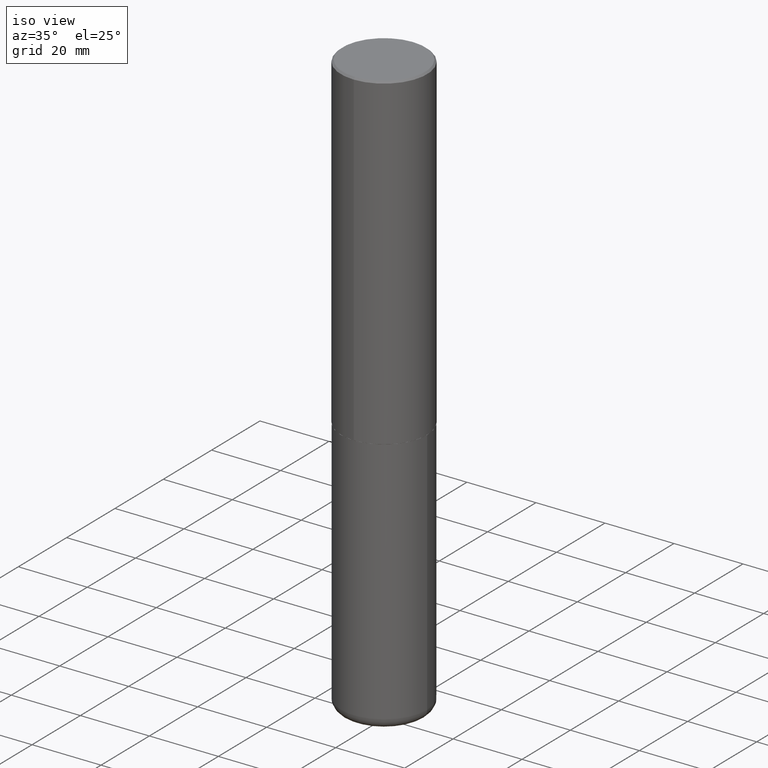
[diagram: clean part render]
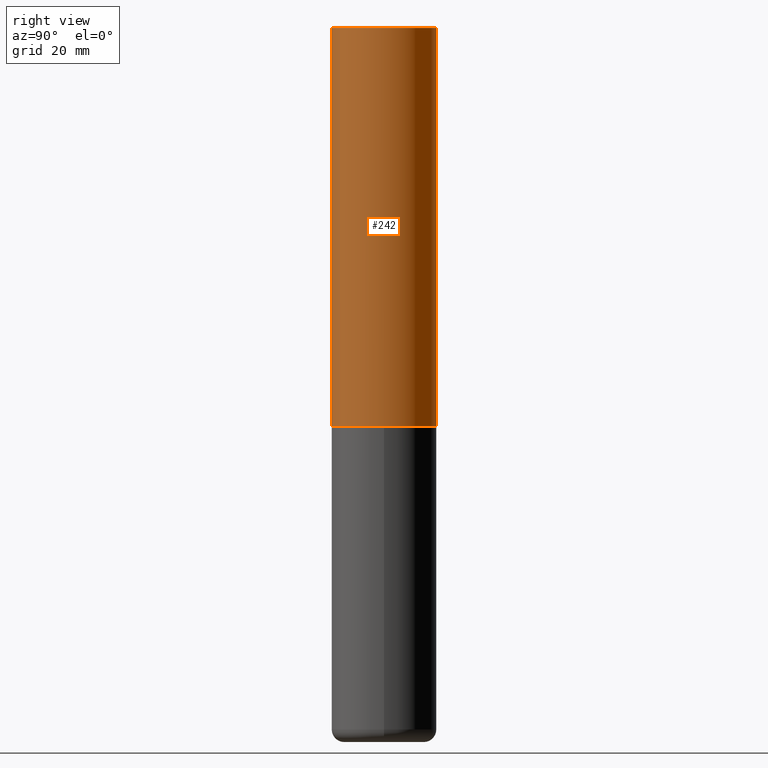
[diagram: tour spotlight — one face highlighted and labeled with its STEP entity id]
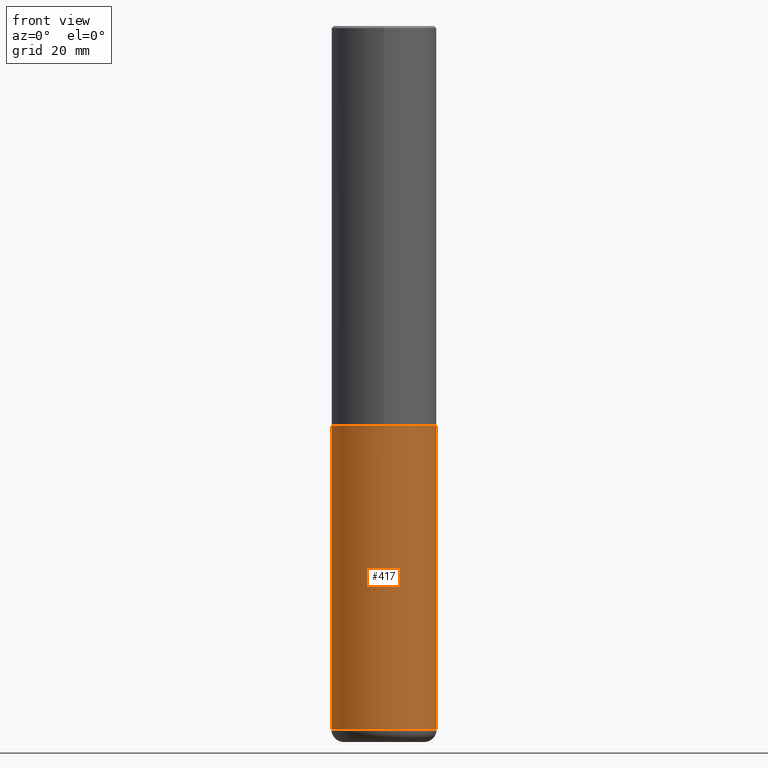
[diagram: tour spotlight — one face highlighted and labeled with its STEP entity id]
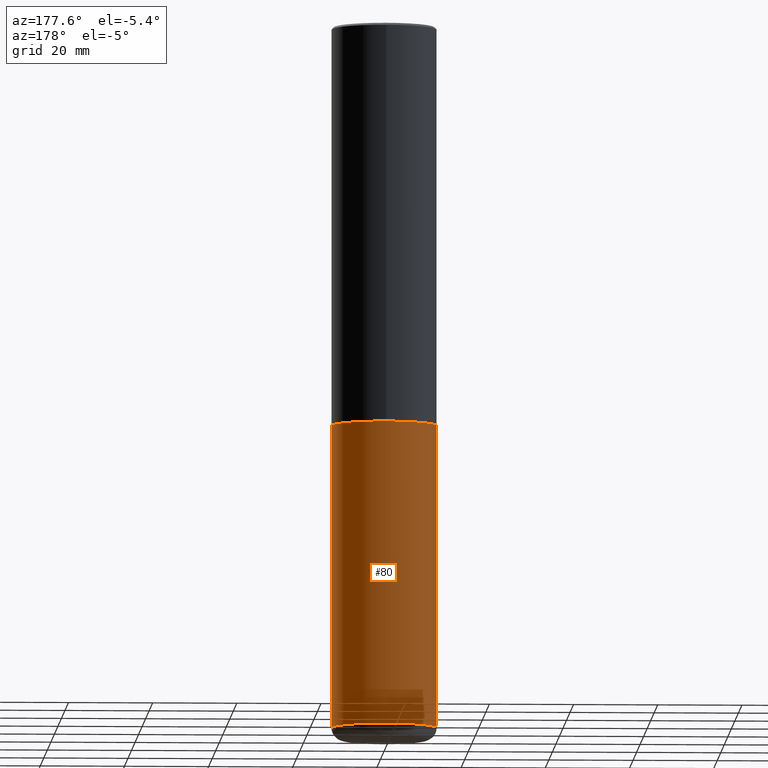
[diagram: tour spotlight — one face highlighted and labeled with its STEP entity id]
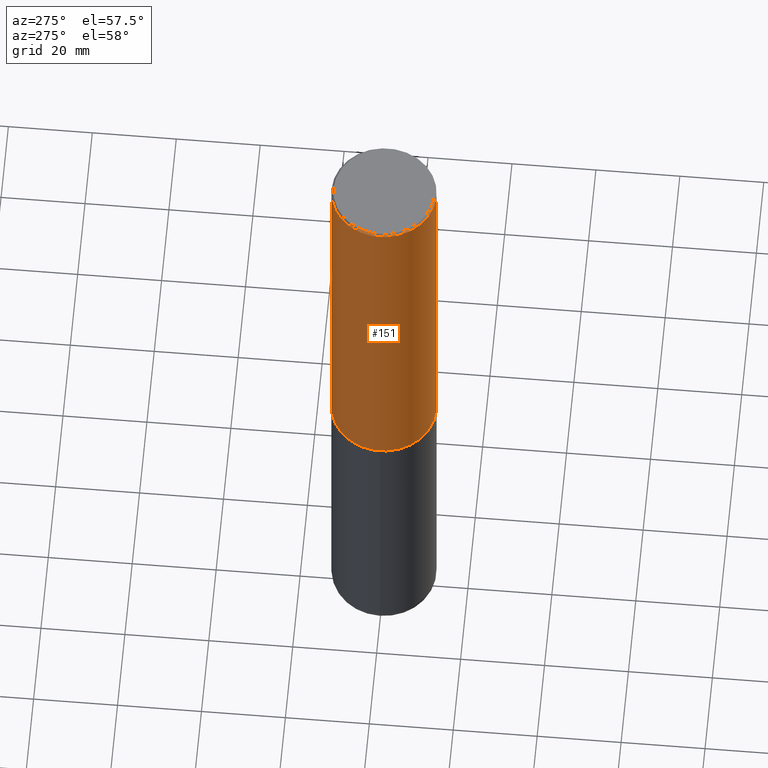
[diagram: tour spotlight — one face highlighted and labeled with its STEP entity id]
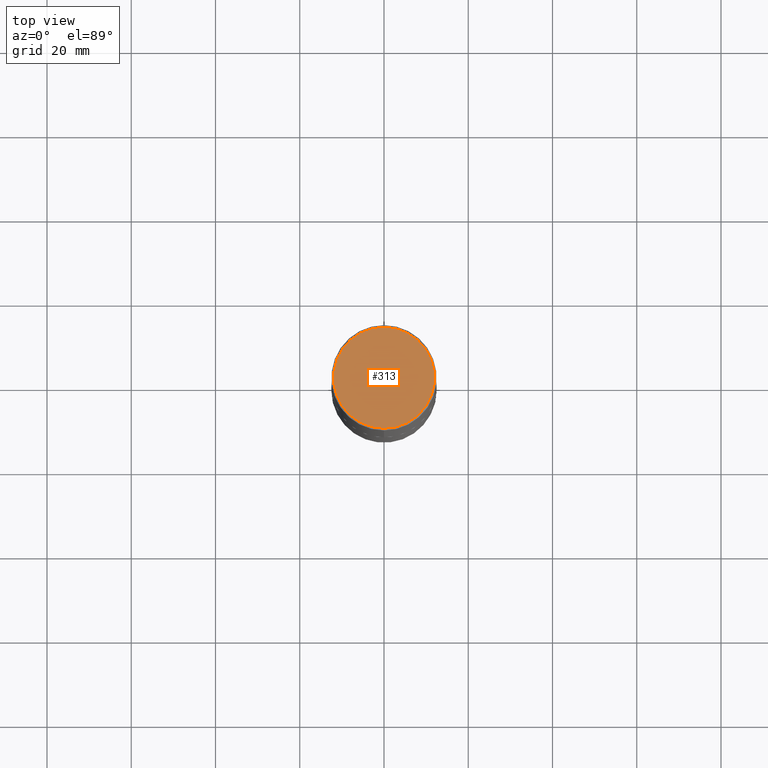
[diagram: tour spotlight — one face highlighted and labeled with its STEP entity id]
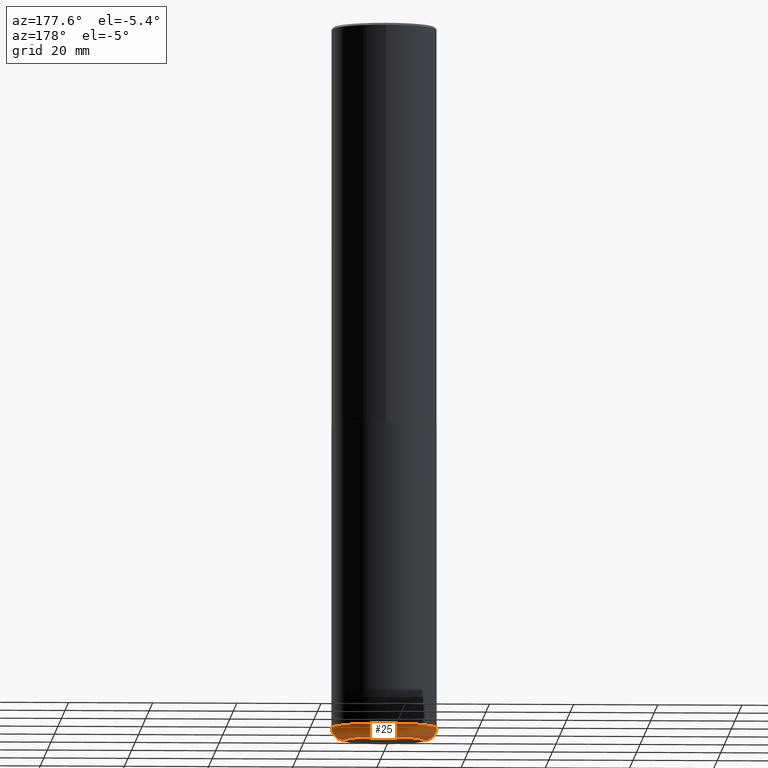
[diagram: tour spotlight — one face highlighted and labeled with its STEP entity id]
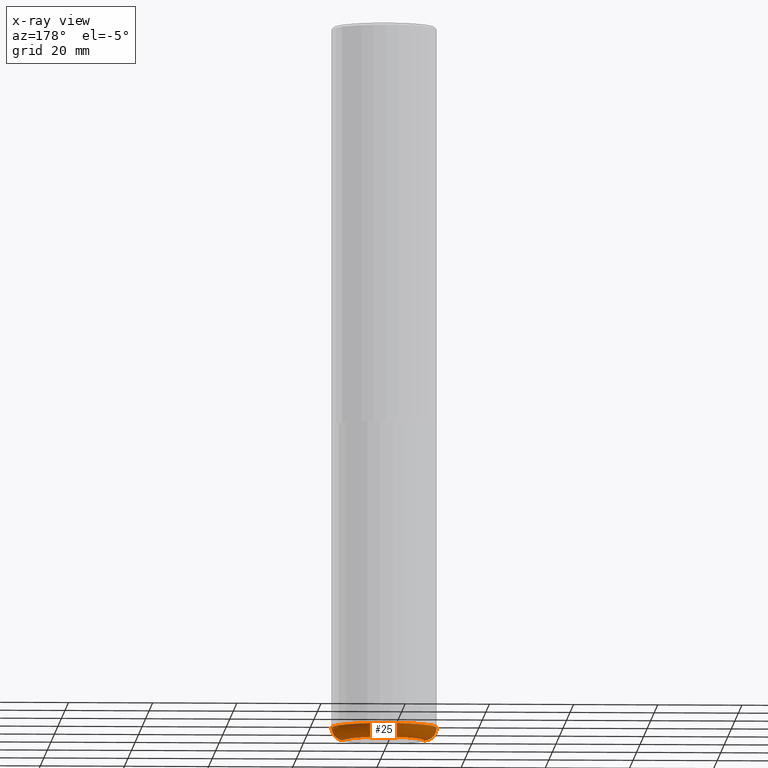
[diagram: x-ray of the same camera — body ghosted, this tour face saturated]
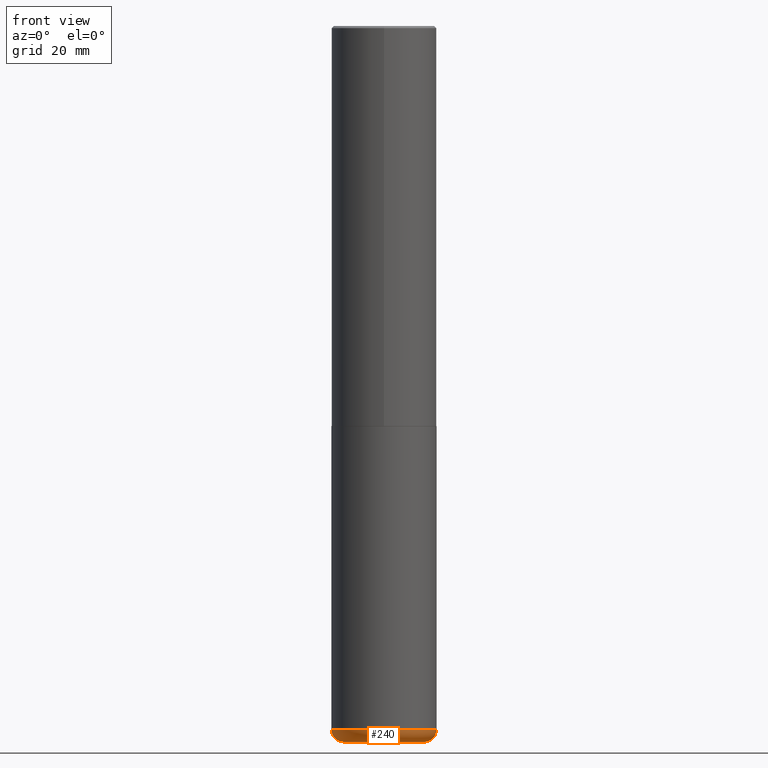
[diagram: tour spotlight — one face highlighted and labeled with its STEP entity id]
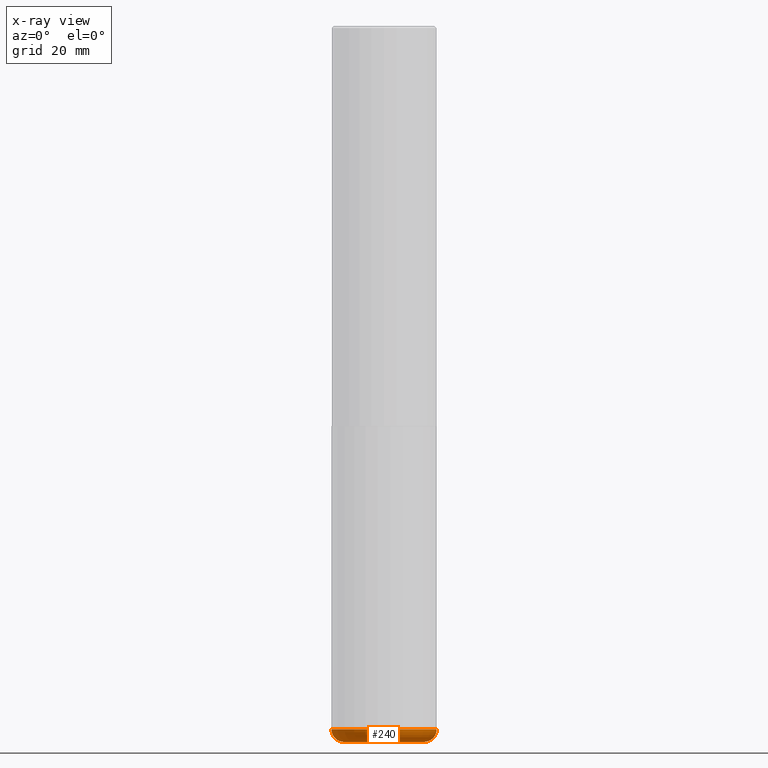
[diagram: x-ray of the same camera — body ghosted, this tour face saturated]
A machine part: a face-by-face anatomy tour. The part has 14 B-rep faces; the first image is the clean iso view, then the 7 largest visible faces are spotlighted one at a time (largest first), each with its STEP entity span.

Face 1 — right view, entity #242. In plain terms, the highlighted cylindrical surface (partial cylindrical patch) has radius 12.5006 mm, axis along (-0, 0, 1).
Definition (entity closure, byte-faithful):
#3 = VECTOR ( 'NONE', #330, 39.37007874015748143 ) ;
#9 = LINE ( 'NONE', #110, #3 ) ;
#14 = EDGE_CURVE ( 'NONE', #258, #360, #259, .T. ) ;
#20 = CARTESIAN_POINT ( 'NONE',  ( 0.000000000000000000, 0.000000000000000000, 0.000000000000000000 ) ) ;
#37 = LINE ( 'NONE', #73, #228 ) ;
#41 = DIRECTION ( 'NONE',  ( -2.445976594451651672E-29, 3.490754157143982552E-15, 1.000000000000000000 ) ) ;
#46 = CARTESIAN_POINT ( 'NONE',  ( 9.145751084314172604E-29, -1.305227886897706845E-14, -3.739100000000000534 ) ) ;
#72 = ORIENTED_EDGE ( 'NONE', *, *, #140, .T. ) ;
#73 = CARTESIAN_POINT ( 'NONE',  ( -3.436665081823296565E-15, -0.4921500000000000874, 1.717974658438411319E-15 ) ) ;
#77 = DIRECTION ( 'NONE',  ( -2.445976594451651952E-29, 3.490754157143982552E-15, 1.000000000000000000 ) ) ;
#94 = AXIS2_PLACEMENT_3D ( 'NONE', #46, #303, #143 ) ;
#110 = CARTESIAN_POINT ( 'NONE',  ( 3.496936074043333291E-15, 0.4921500000000000874, -1.717974658438411319E-15 ) ) ;
#115 = AXIS2_PLACEMENT_3D ( 'NONE', #211, #77, #181 ) ;
#119 = EDGE_CURVE ( 'NONE', #175, #360, #9, .T. ) ;
#123 = CARTESIAN_POINT ( 'NONE',  ( -3.376394089603257868E-15, -0.4921499999999999764, -0.01999999999999839059 ) ) ;
#126 = DIRECTION ( 'NONE',  ( -6.982962677686265922E-15, -1.000000000000000000, 3.490754157143982552E-15 ) ) ;
#127 = AXIS2_PLACEMENT_3D ( 'NONE', #20, #378, #126 ) ;
#128 = CARTESIAN_POINT ( 'NONE',  ( 3.436665081823295777E-15, 0.4921499999999998098, -0.02000000000000182188 ) ) ;
#140 = EDGE_CURVE ( 'NONE', #163, #175, #307, .T. ) ;
#143 = DIRECTION ( 'NONE',  ( -6.982962677686265922E-15, -1.000000000000000000, 3.330506545156063496E-15 ) ) ;
#152 = FACE_OUTER_BOUND ( 'NONE', #305, .T. ) ;
#163 = VERTEX_POINT ( 'NONE', #281 ) ;
#171 = ORIENTED_EDGE ( 'NONE', *, *, #14, .F. ) ;
#175 = VERTEX_POINT ( 'NONE', #254 ) ;
#181 = DIRECTION ( 'NONE',  ( -6.982962677686265922E-15, -1.000000000000000000, 3.486624039460257331E-15 ) ) ;
#211 = CARTESIAN_POINT ( 'NONE',  ( 4.891953188903329688E-31, -6.981508314288001687E-17, -0.02000000000000010797 ) ) ;
#218 = CYLINDRICAL_SURFACE ( 'NONE', #127, 0.4921500000000000874 ) ;
#228 = VECTOR ( 'NONE', #41, 39.37007874015748143 ) ;
#242 = ADVANCED_FACE ( 'NONE', ( #152 ), #218, .T. ) ;
#254 = CARTESIAN_POINT ( 'NONE',  ( 3.496936074043380229E-15, 0.4921499999999873198, -3.739100000000002311 ) ) ;
#258 = VERTEX_POINT ( 'NONE', #123 ) ;
#259 = CIRCLE ( 'NONE', #115, 0.4921499999999999209 ) ;
#264 = ORIENTED_EDGE ( 'NONE', *, *, #119, .T. ) ;
#281 = CARTESIAN_POINT ( 'NONE',  ( -3.436665081823207030E-15, -0.4921500000000134101, -3.739099999999998758 ) ) ;
#303 = DIRECTION ( 'NONE',  ( -2.445976594451651952E-29, 3.490754157143982552E-15, 1.000000000000000000 ) ) ;
#305 = EDGE_LOOP ( 'NONE', ( #72, #264, #171, #336 ) ) ;
#307 = CIRCLE ( 'NONE', #94, 0.4921500000000003650 ) ;
#330 = DIRECTION ( 'NONE',  ( -2.445976594451651672E-29, 3.490754157143982552E-15, 1.000000000000000000 ) ) ;
#336 = ORIENTED_EDGE ( 'NONE', *, *, #406, .F. ) ;
#360 = VERTEX_POINT ( 'NONE', #128 ) ;
#378 = DIRECTION ( 'NONE',  ( -2.445976594451651952E-29, 3.490754157143982552E-15, 1.000000000000000000 ) ) ;
#406 = EDGE_CURVE ( 'NONE', #163, #258, #37, .T. ) ;

Face 2 — front view, entity #417. In plain terms, the highlighted cylindrical surface (partial cylindrical patch) has radius 12.5006 mm, axis along (-0, 0, 1).
Definition (entity closure, byte-faithful):
#6 = VERTEX_POINT ( 'NONE', #179 ) ;
#24 = LINE ( 'NONE', #28, #122 ) ;
#26 = CARTESIAN_POINT ( 'NONE',  ( 0.4921499999999999764, -3.436665081823295777E-15, 2.399810400207969603E-29 ) ) ;
#28 = CARTESIAN_POINT ( 'NONE',  ( -0.4921499999999999764, 3.496936074043332897E-15, -2.420853904668951509E-29 ) ) ;
#57 = DIRECTION ( 'NONE',  ( 1.000000000000000000, -6.982962677686265133E-15, 0.000000000000000000 ) ) ;
#68 = AXIS2_PLACEMENT_3D ( 'NONE', #282, #91, #57 ) ;
#91 = DIRECTION ( 'NONE',  ( -2.445468806185136597E-29, 3.491481338843145583E-15, 1.000000000000000000 ) ) ;
#97 = CARTESIAN_POINT ( 'NONE',  ( 0.000000000000000000, 0.000000000000000000, 0.000000000000000000 ) ) ;
#98 = CARTESIAN_POINT ( 'NONE',  ( 9.146297882013029477E-29, -1.305848935540725085E-14, -3.740100000000000424 ) ) ;
#100 = AXIS2_PLACEMENT_3D ( 'NONE', #98, #324, #136 ) ;
#121 = LINE ( 'NONE', #26, #191 ) ;
#122 = VECTOR ( 'NONE', #154, 39.37007874015748143 ) ;
#125 = CARTESIAN_POINT ( 'NONE',  ( 0.4921499999999999764, -1.649515443723054663E-14, -3.740100000000000424 ) ) ;
#136 = DIRECTION ( 'NONE',  ( 1.000000000000000000, -6.982962677686265922E-15, 0.000000000000000000 ) ) ;
#137 = ORIENTED_EDGE ( 'NONE', *, *, #157, .T. ) ;
#154 = DIRECTION ( 'NONE',  ( -2.445468806185136877E-29, 3.491481338843145188E-15, 1.000000000000000000 ) ) ;
#157 = EDGE_CURVE ( 'NONE', #351, #173, #121, .T. ) ;
#161 = ORIENTED_EDGE ( 'NONE', *, *, #286, .F. ) ;
#166 = FACE_OUTER_BOUND ( 'NONE', #169, .T. ) ;
#169 = EDGE_LOOP ( 'NONE', ( #161, #241, #137, #418 ) ) ;
#173 = VERTEX_POINT ( 'NONE', #125 ) ;
#179 = CARTESIAN_POINT ( 'NONE',  ( -0.4921499999999999764, -1.451020435697325173E-14, -3.740100000000000424 ) ) ;
#191 = VECTOR ( 'NONE', #217, 39.37007874015748143 ) ;
#200 = CYLINDRICAL_SURFACE ( 'NONE', #208, 0.4921499999999999764 ) ;
#208 = AXIS2_PLACEMENT_3D ( 'NONE', #97, #328, #414 ) ;
#209 = EDGE_CURVE ( 'NONE', #233, #351, #250, .T. ) ;
#217 = DIRECTION ( 'NONE',  ( -2.445468806185136877E-29, 3.491481338843145188E-15, 1.000000000000000000 ) ) ;
#233 = VERTEX_POINT ( 'NONE', #248 ) ;
#241 = ORIENTED_EDGE ( 'NONE', *, *, #209, .T. ) ;
#248 = CARTESIAN_POINT ( 'NONE',  ( -0.4921499999999999764, -1.945885543258258157E-14, -6.574799999999999756 ) ) ;
#250 = CIRCLE ( 'NONE', #68, 0.4921500000000000319 ) ;
#282 = CARTESIAN_POINT ( 'NONE',  ( 1.607846830690603466E-28, -2.295579150662591525E-14, -6.574799999999999756 ) ) ;
#286 = EDGE_CURVE ( 'NONE', #233, #6, #24, .T. ) ;
#287 = CARTESIAN_POINT ( 'NONE',  ( 0.4921499999999999764, -2.639245658844920945E-14, -6.574799999999999756 ) ) ;
#324 = DIRECTION ( 'NONE',  ( -2.445468806185136597E-29, 3.491481338843145583E-15, 1.000000000000000000 ) ) ;
#328 = DIRECTION ( 'NONE',  ( -2.445468806185136597E-29, 3.491481338843145583E-15, 1.000000000000000000 ) ) ;
#351 = VERTEX_POINT ( 'NONE', #287 ) ;
#371 = CIRCLE ( 'NONE', #100, 0.4921499999999999764 ) ;
#383 = EDGE_CURVE ( 'NONE', #6, #173, #371, .T. ) ;
#414 = DIRECTION ( 'NONE',  ( 1.000000000000000000, -6.982962677686265922E-15, 4.876176775795935793E-29 ) ) ;
#417 = ADVANCED_FACE ( 'NONE', ( #166 ), #200, .T. ) ;
#418 = ORIENTED_EDGE ( 'NONE', *, *, #383, .F. ) ;

Face 3 — auxiliary view, entity #80. In plain terms, the highlighted cylindrical surface (partial cylindrical patch) has radius 12.5006 mm, axis along (-0, 0, 1).
Definition (entity closure, byte-faithful):
#6 = VERTEX_POINT ( 'NONE', #179 ) ;
#24 = LINE ( 'NONE', #28, #122 ) ;
#26 = CARTESIAN_POINT ( 'NONE',  ( 0.4921499999999999764, -3.436665081823295777E-15, 2.399810400207969603E-29 ) ) ;
#28 = CARTESIAN_POINT ( 'NONE',  ( -0.4921499999999999764, 3.496936074043332897E-15, -2.420853904668951509E-29 ) ) ;
#80 = ADVANCED_FACE ( 'NONE', ( #245 ), #177, .T. ) ;
#93 = CARTESIAN_POINT ( 'NONE',  ( 9.146297882013029477E-29, -1.305848935540725085E-14, -3.740100000000000424 ) ) ;
#121 = LINE ( 'NONE', #26, #191 ) ;
#122 = VECTOR ( 'NONE', #154, 39.37007874015748143 ) ;
#125 = CARTESIAN_POINT ( 'NONE',  ( 0.4921499999999999764, -1.649515443723054663E-14, -3.740100000000000424 ) ) ;
#132 = DIRECTION ( 'NONE',  ( 1.000000000000000000, -6.982962677686265133E-15, 0.000000000000000000 ) ) ;
#142 = DIRECTION ( 'NONE',  ( -2.445468806185136597E-29, 3.491481338843145583E-15, 1.000000000000000000 ) ) ;
#148 = ORIENTED_EDGE ( 'NONE', *, *, #222, .F. ) ;
#154 = DIRECTION ( 'NONE',  ( -2.445468806185136877E-29, 3.491481338843145188E-15, 1.000000000000000000 ) ) ;
#157 = EDGE_CURVE ( 'NONE', #351, #173, #121, .T. ) ;
#168 = CIRCLE ( 'NONE', #315, 0.4921500000000000319 ) ;
#173 = VERTEX_POINT ( 'NONE', #125 ) ;
#177 = CYLINDRICAL_SURFACE ( 'NONE', #402, 0.4921499999999999764 ) ;
#179 = CARTESIAN_POINT ( 'NONE',  ( -0.4921499999999999764, -1.451020435697325173E-14, -3.740100000000000424 ) ) ;
#191 = VECTOR ( 'NONE', #217, 39.37007874015748143 ) ;
#217 = DIRECTION ( 'NONE',  ( -2.445468806185136877E-29, 3.491481338843145188E-15, 1.000000000000000000 ) ) ;
#219 = DIRECTION ( 'NONE',  ( -2.445468806185136597E-29, 3.491481338843145583E-15, 1.000000000000000000 ) ) ;
#220 = AXIS2_PLACEMENT_3D ( 'NONE', #93, #219, #251 ) ;
#222 = EDGE_CURVE ( 'NONE', #173, #6, #381, .T. ) ;
#230 = DIRECTION ( 'NONE',  ( -2.445468806185136597E-29, 3.491481338843145583E-15, 1.000000000000000000 ) ) ;
#233 = VERTEX_POINT ( 'NONE', #248 ) ;
#245 = FACE_OUTER_BOUND ( 'NONE', #291, .T. ) ;
#248 = CARTESIAN_POINT ( 'NONE',  ( -0.4921499999999999764, -1.945885543258258157E-14, -6.574799999999999756 ) ) ;
#251 = DIRECTION ( 'NONE',  ( 1.000000000000000000, -6.982962677686265922E-15, 0.000000000000000000 ) ) ;
#267 = ORIENTED_EDGE ( 'NONE', *, *, #157, .F. ) ;
#286 = EDGE_CURVE ( 'NONE', #233, #6, #24, .T. ) ;
#287 = CARTESIAN_POINT ( 'NONE',  ( 0.4921499999999999764, -2.639245658844920945E-14, -6.574799999999999756 ) ) ;
#291 = EDGE_LOOP ( 'NONE', ( #329, #416, #148, #267 ) ) ;
#308 = DIRECTION ( 'NONE',  ( 1.000000000000000000, -6.982962677686265922E-15, 4.876176775795935793E-29 ) ) ;
#315 = AXIS2_PLACEMENT_3D ( 'NONE', #387, #230, #132 ) ;
#329 = ORIENTED_EDGE ( 'NONE', *, *, #340, .T. ) ;
#339 = CARTESIAN_POINT ( 'NONE',  ( 0.000000000000000000, 0.000000000000000000, 0.000000000000000000 ) ) ;
#340 = EDGE_CURVE ( 'NONE', #351, #233, #168, .T. ) ;
#351 = VERTEX_POINT ( 'NONE', #287 ) ;
#381 = CIRCLE ( 'NONE', #220, 0.4921499999999999764 ) ;
#387 = CARTESIAN_POINT ( 'NONE',  ( 1.607846830690603466E-28, -2.295579150662591525E-14, -6.574799999999999756 ) ) ;
#402 = AXIS2_PLACEMENT_3D ( 'NONE', #339, #142, #308 ) ;
#416 = ORIENTED_EDGE ( 'NONE', *, *, #286, .T. ) ;

Face 4 — auxiliary view, entity #151. In plain terms, the highlighted cylindrical surface (partial cylindrical patch) has radius 12.5006 mm, axis along (-0, 0, 1).
Definition (entity closure, byte-faithful):
#3 = VECTOR ( 'NONE', #330, 39.37007874015748143 ) ;
#9 = LINE ( 'NONE', #110, #3 ) ;
#18 = CARTESIAN_POINT ( 'NONE',  ( 4.891953188903329688E-31, -6.981508314288001687E-17, -0.02000000000000010797 ) ) ;
#19 = CARTESIAN_POINT ( 'NONE',  ( 0.000000000000000000, 0.000000000000000000, 0.000000000000000000 ) ) ;
#37 = LINE ( 'NONE', #73, #228 ) ;
#39 = AXIS2_PLACEMENT_3D ( 'NONE', #19, #346, #184 ) ;
#41 = DIRECTION ( 'NONE',  ( -2.445976594451651672E-29, 3.490754157143982552E-15, 1.000000000000000000 ) ) ;
#59 = CARTESIAN_POINT ( 'NONE',  ( 9.145751084314172604E-29, -1.305227886897706845E-14, -3.739100000000000534 ) ) ;
#60 = AXIS2_PLACEMENT_3D ( 'NONE', #59, #188, #189 ) ;
#73 = CARTESIAN_POINT ( 'NONE',  ( -3.436665081823296565E-15, -0.4921500000000000874, 1.717974658438411319E-15 ) ) ;
#84 = EDGE_LOOP ( 'NONE', ( #288, #400, #356, #275 ) ) ;
#88 = EDGE_CURVE ( 'NONE', #360, #258, #321, .T. ) ;
#110 = CARTESIAN_POINT ( 'NONE',  ( 3.496936074043333291E-15, 0.4921500000000000874, -1.717974658438411319E-15 ) ) ;
#119 = EDGE_CURVE ( 'NONE', #175, #360, #9, .T. ) ;
#123 = CARTESIAN_POINT ( 'NONE',  ( -3.376394089603257868E-15, -0.4921499999999999764, -0.01999999999999839059 ) ) ;
#128 = CARTESIAN_POINT ( 'NONE',  ( 3.436665081823295777E-15, 0.4921499999999998098, -0.02000000000000182188 ) ) ;
#151 = ADVANCED_FACE ( 'NONE', ( #272 ), #411, .T. ) ;
#163 = VERTEX_POINT ( 'NONE', #281 ) ;
#175 = VERTEX_POINT ( 'NONE', #254 ) ;
#184 = DIRECTION ( 'NONE',  ( -6.982962677686265922E-15, -1.000000000000000000, 3.490754157143982552E-15 ) ) ;
#188 = DIRECTION ( 'NONE',  ( -2.445976594451651952E-29, 3.490754157143982552E-15, 1.000000000000000000 ) ) ;
#189 = DIRECTION ( 'NONE',  ( -6.982962677686265922E-15, -1.000000000000000000, 3.330506545156063496E-15 ) ) ;
#227 = AXIS2_PLACEMENT_3D ( 'NONE', #18, #280, #405 ) ;
#228 = VECTOR ( 'NONE', #41, 39.37007874015748143 ) ;
#244 = CIRCLE ( 'NONE', #60, 0.4921500000000003650 ) ;
#254 = CARTESIAN_POINT ( 'NONE',  ( 3.496936074043380229E-15, 0.4921499999999873198, -3.739100000000002311 ) ) ;
#258 = VERTEX_POINT ( 'NONE', #123 ) ;
#265 = EDGE_CURVE ( 'NONE', #175, #163, #244, .T. ) ;
#272 = FACE_OUTER_BOUND ( 'NONE', #84, .T. ) ;
#275 = ORIENTED_EDGE ( 'NONE', *, *, #88, .F. ) ;
#280 = DIRECTION ( 'NONE',  ( -2.445976594451651952E-29, 3.490754157143982552E-15, 1.000000000000000000 ) ) ;
#281 = CARTESIAN_POINT ( 'NONE',  ( -3.436665081823207030E-15, -0.4921500000000134101, -3.739099999999998758 ) ) ;
#288 = ORIENTED_EDGE ( 'NONE', *, *, #119, .F. ) ;
#321 = CIRCLE ( 'NONE', #227, 0.4921499999999999209 ) ;
#330 = DIRECTION ( 'NONE',  ( -2.445976594451651672E-29, 3.490754157143982552E-15, 1.000000000000000000 ) ) ;
#346 = DIRECTION ( 'NONE',  ( -2.445976594451651952E-29, 3.490754157143982552E-15, 1.000000000000000000 ) ) ;
#356 = ORIENTED_EDGE ( 'NONE', *, *, #406, .T. ) ;
#360 = VERTEX_POINT ( 'NONE', #128 ) ;
#400 = ORIENTED_EDGE ( 'NONE', *, *, #265, .T. ) ;
#405 = DIRECTION ( 'NONE',  ( -6.982962677686265922E-15, -1.000000000000000000, 3.486624039460257331E-15 ) ) ;
#406 = EDGE_CURVE ( 'NONE', #163, #258, #37, .T. ) ;
#411 = CYLINDRICAL_SURFACE ( 'NONE', #39, 0.4921500000000000874 ) ;

Face 5 — top view, entity #313. In plain terms, the highlighted planar face has unit normal (0, -0, -1).
Definition (entity closure, byte-faithful):
#30 = CIRCLE ( 'NONE', #153, 0.4721499999999996255 ) ;
#61 = EDGE_CURVE ( 'NONE', #289, #386, #167, .T. ) ;
#67 = EDGE_CURVE ( 'NONE', #386, #289, #30, .T. ) ;
#76 = AXIS2_PLACEMENT_3D ( 'NONE', #294, #160, #105 ) ;
#102 = PLANE ( 'NONE',  #76 ) ;
#105 = DIRECTION ( 'NONE',  ( 6.982962677686265922E-15, 1.000000000000000000, -3.490754157143982552E-15 ) ) ;
#146 = DIRECTION ( 'NONE',  ( -6.982962677686265922E-15, -1.000000000000000000, 3.490754157143982946E-15 ) ) ;
#149 = FACE_OUTER_BOUND ( 'NONE', #398, .T. ) ;
#153 = AXIS2_PLACEMENT_3D ( 'NONE', #205, #404, #332 ) ;
#156 = CARTESIAN_POINT ( 'NONE',  ( 3.366835455046432084E-15, 0.4721499999999996255, -1.426540264649568516E-15 ) ) ;
#160 = DIRECTION ( 'NONE',  ( 2.445976594451651392E-29, -3.490754157143982552E-15, -1.000000000000000000 ) ) ;
#167 = CIRCLE ( 'NONE', #369, 0.4721499999999996255 ) ;
#199 = ORIENTED_EDGE ( 'NONE', *, *, #67, .T. ) ;
#205 = CARTESIAN_POINT ( 'NONE',  ( -5.420756467185317189E-45, 7.736185299407739239E-31, 2.216193106459615290E-16 ) ) ;
#207 = DIRECTION ( 'NONE',  ( -2.445976594451651952E-29, 3.490754157143982552E-15, 1.000000000000000000 ) ) ;
#289 = VERTEX_POINT ( 'NONE', #156 ) ;
#294 = CARTESIAN_POINT ( 'NONE',  ( 3.297005828269567997E-15, 0.4721499999999996255, -1.537349919972549256E-15 ) ) ;
#313 = ADVANCED_FACE ( 'NONE', ( #149 ), #102, .F. ) ;
#332 = DIRECTION ( 'NONE',  ( -6.982962677686265922E-15, -1.000000000000000000, 3.490754157143982946E-15 ) ) ;
#335 = CARTESIAN_POINT ( 'NONE',  ( -5.420756467185317189E-45, 7.736185299407739239E-31, 2.216193106459615290E-16 ) ) ;
#369 = AXIS2_PLACEMENT_3D ( 'NONE', #335, #207, #146 ) ;
#386 = VERTEX_POINT ( 'NONE', #391 ) ;
#391 = CARTESIAN_POINT ( 'NONE',  ( -3.307789109625541747E-15, -0.4721499999999996255, 1.869778885941491673E-15 ) ) ;
#392 = ORIENTED_EDGE ( 'NONE', *, *, #61, .T. ) ;
#398 = EDGE_LOOP ( 'NONE', ( #392, #199 ) ) ;
#404 = DIRECTION ( 'NONE',  ( -2.445976594451651952E-29, 3.490754157143982552E-15, 1.000000000000000000 ) ) ;

Face 6 — auxiliary view, entity #25. An x-ray twin of the same camera follows (body ghosted, this face saturated) — the face is partly hidden behind the body. In plain terms, the highlighted toroidal blend (fillet) surface has major radius 9.5009 mm and minor (blend) radius 2.9997 mm.
Definition (entity closure, byte-faithful):
#8 = ORIENTED_EDGE ( 'NONE', *, *, #373, .T. ) ;
#16 = DIRECTION ( 'NONE',  ( -2.445468806185136597E-29, 3.491481338843145583E-15, 1.000000000000000000 ) ) ;
#17 = CIRCLE ( 'NONE', #255, 0.1181000000000000383 ) ;
#23 = AXIS2_PLACEMENT_3D ( 'NONE', #359, #65, #29 ) ;
#25 = ADVANCED_FACE ( 'NONE', ( #79 ), #82, .T. ) ;
#29 = DIRECTION ( 'NONE',  ( -1.000000000000000000, 7.105427357601001859E-15, 0.000000000000000000 ) ) ;
#65 = DIRECTION ( 'NONE',  ( 7.105427357601001859E-15, 1.000000000000000000, -3.491481338843145583E-15 ) ) ;
#66 = ORIENTED_EDGE ( 'NONE', *, *, #273, .T. ) ;
#70 = ORIENTED_EDGE ( 'NONE', *, *, #269, .F. ) ;
#79 = FACE_OUTER_BOUND ( 'NONE', #354, .T. ) ;
#82 = TOROIDAL_SURFACE ( 'NONE', #133, 0.3740499999999999381, 0.1181000000000000660 ) ;
#101 = VERTEX_POINT ( 'NONE', #237 ) ;
#118 = CARTESIAN_POINT ( 'NONE',  ( 1.607846830690603466E-28, -2.295579150662591525E-14, -6.574799999999999756 ) ) ;
#132 = DIRECTION ( 'NONE',  ( 1.000000000000000000, -6.982962677686265133E-15, 0.000000000000000000 ) ) ;
#133 = AXIS2_PLACEMENT_3D ( 'NONE', #118, #16, #368 ) ;
#134 = CIRCLE ( 'NONE', #23, 0.1181000000000000383 ) ;
#168 = CIRCLE ( 'NONE', #315, 0.4921500000000000319 ) ;
#170 = CARTESIAN_POINT ( 'NONE',  ( -0.3740499999999999381, -2.008460289110760576E-14, -6.692899999999999849 ) ) ;
#182 = CIRCLE ( 'NONE', #235, 0.3740499999999999381 ) ;
#185 = CARTESIAN_POINT ( 'NONE',  ( 1.636727817291649966E-28, -2.336813545274328780E-14, -6.692899999999999849 ) ) ;
#230 = DIRECTION ( 'NONE',  ( -2.445468806185136597E-29, 3.491481338843145583E-15, 1.000000000000000000 ) ) ;
#233 = VERTEX_POINT ( 'NONE', #248 ) ;
#235 = AXIS2_PLACEMENT_3D ( 'NONE', #185, #375, #314 ) ;
#237 = CARTESIAN_POINT ( 'NONE',  ( 0.3740499999999999381, -2.598011264233183690E-14, -6.692899999999999849 ) ) ;
#248 = CARTESIAN_POINT ( 'NONE',  ( -0.4921499999999999764, -1.945885543258258157E-14, -6.574799999999999756 ) ) ;
#255 = AXIS2_PLACEMENT_3D ( 'NONE', #316, #380, #317 ) ;
#269 = EDGE_CURVE ( 'NONE', #101, #351, #17, .T. ) ;
#273 = EDGE_CURVE ( 'NONE', #101, #326, #182, .T. ) ;
#287 = CARTESIAN_POINT ( 'NONE',  ( 0.4921499999999999764, -2.639245658844920945E-14, -6.574799999999999756 ) ) ;
#295 = ORIENTED_EDGE ( 'NONE', *, *, #340, .F. ) ;
#314 = DIRECTION ( 'NONE',  ( 1.000000000000000000, -6.982962677686265133E-15, 0.000000000000000000 ) ) ;
#315 = AXIS2_PLACEMENT_3D ( 'NONE', #387, #230, #132 ) ;
#316 = CARTESIAN_POINT ( 'NONE',  ( 0.3740499999999999381, -2.556776869621446119E-14, -6.574799999999999756 ) ) ;
#317 = DIRECTION ( 'NONE',  ( 1.000000000000000000, -6.982962677686270655E-15, 0.000000000000000000 ) ) ;
#326 = VERTEX_POINT ( 'NONE', #170 ) ;
#340 = EDGE_CURVE ( 'NONE', #351, #233, #168, .T. ) ;
#351 = VERTEX_POINT ( 'NONE', #287 ) ;
#354 = EDGE_LOOP ( 'NONE', ( #66, #8, #295, #70 ) ) ;
#359 = CARTESIAN_POINT ( 'NONE',  ( -0.3740499999999999381, -2.029800640351526055E-14, -6.574799999999999756 ) ) ;
#368 = DIRECTION ( 'NONE',  ( 1.000000000000000000, -6.982962677686266711E-15, 4.883557194083112340E-29 ) ) ;
#373 = EDGE_CURVE ( 'NONE', #326, #233, #134, .T. ) ;
#375 = DIRECTION ( 'NONE',  ( -2.445468806185136597E-29, 3.491481338843145583E-15, 1.000000000000000000 ) ) ;
#380 = DIRECTION ( 'NONE',  ( -6.982962677686266711E-15, -1.000000000000000000, 3.491481338843145583E-15 ) ) ;
#387 = CARTESIAN_POINT ( 'NONE',  ( 1.607846830690603466E-28, -2.295579150662591525E-14, -6.574799999999999756 ) ) ;

Face 7 — front view, entity #240. An x-ray twin of the same camera follows (body ghosted, this face saturated) — the face is partly hidden behind the body. In plain terms, the highlighted toroidal blend (fillet) surface has major radius 9.5009 mm and minor (blend) radius 2.9997 mm.
Definition (entity closure, byte-faithful):
#17 = CIRCLE ( 'NONE', #255, 0.1181000000000000383 ) ;
#23 = AXIS2_PLACEMENT_3D ( 'NONE', #359, #65, #29 ) ;
#29 = DIRECTION ( 'NONE',  ( -1.000000000000000000, 7.105427357601001859E-15, 0.000000000000000000 ) ) ;
#55 = EDGE_CURVE ( 'NONE', #326, #101, #408, .T. ) ;
#57 = DIRECTION ( 'NONE',  ( 1.000000000000000000, -6.982962677686265133E-15, 0.000000000000000000 ) ) ;
#58 = FACE_OUTER_BOUND ( 'NONE', #75, .T. ) ;
#65 = DIRECTION ( 'NONE',  ( 7.105427357601001859E-15, 1.000000000000000000, -3.491481338843145583E-15 ) ) ;
#68 = AXIS2_PLACEMENT_3D ( 'NONE', #282, #91, #57 ) ;
#75 = EDGE_LOOP ( 'NONE', ( #202, #372, #103, #107 ) ) ;
#91 = DIRECTION ( 'NONE',  ( -2.445468806185136597E-29, 3.491481338843145583E-15, 1.000000000000000000 ) ) ;
#96 = CARTESIAN_POINT ( 'NONE',  ( 1.607846830690603466E-28, -2.295579150662591525E-14, -6.574799999999999756 ) ) ;
#101 = VERTEX_POINT ( 'NONE', #237 ) ;
#103 = ORIENTED_EDGE ( 'NONE', *, *, #269, .T. ) ;
#107 = ORIENTED_EDGE ( 'NONE', *, *, #209, .F. ) ;
#112 = DIRECTION ( 'NONE',  ( 1.000000000000000000, -6.982962677686265133E-15, 0.000000000000000000 ) ) ;
#134 = CIRCLE ( 'NONE', #23, 0.1181000000000000383 ) ;
#144 = CARTESIAN_POINT ( 'NONE',  ( 1.636727817291649966E-28, -2.336813545274328780E-14, -6.692899999999999849 ) ) ;
#170 = CARTESIAN_POINT ( 'NONE',  ( -0.3740499999999999381, -2.008460289110760576E-14, -6.692899999999999849 ) ) ;
#174 = TOROIDAL_SURFACE ( 'NONE', #277, 0.3740499999999999381, 0.1181000000000000660 ) ;
#202 = ORIENTED_EDGE ( 'NONE', *, *, #373, .F. ) ;
#204 = DIRECTION ( 'NONE',  ( -2.445468806185136597E-29, 3.491481338843145583E-15, 1.000000000000000000 ) ) ;
#209 = EDGE_CURVE ( 'NONE', #233, #351, #250, .T. ) ;
#233 = VERTEX_POINT ( 'NONE', #248 ) ;
#237 = CARTESIAN_POINT ( 'NONE',  ( 0.3740499999999999381, -2.598011264233183690E-14, -6.692899999999999849 ) ) ;
#240 = ADVANCED_FACE ( 'NONE', ( #58 ), #174, .T. ) ;
#248 = CARTESIAN_POINT ( 'NONE',  ( -0.4921499999999999764, -1.945885543258258157E-14, -6.574799999999999756 ) ) ;
#250 = CIRCLE ( 'NONE', #68, 0.4921500000000000319 ) ;
#255 = AXIS2_PLACEMENT_3D ( 'NONE', #316, #380, #317 ) ;
#269 = EDGE_CURVE ( 'NONE', #101, #351, #17, .T. ) ;
#277 = AXIS2_PLACEMENT_3D ( 'NONE', #96, #283, #312 ) ;
#282 = CARTESIAN_POINT ( 'NONE',  ( 1.607846830690603466E-28, -2.295579150662591525E-14, -6.574799999999999756 ) ) ;
#283 = DIRECTION ( 'NONE',  ( -2.445468806185136597E-29, 3.491481338843145583E-15, 1.000000000000000000 ) ) ;
#287 = CARTESIAN_POINT ( 'NONE',  ( 0.4921499999999999764, -2.639245658844920945E-14, -6.574799999999999756 ) ) ;
#312 = DIRECTION ( 'NONE',  ( 1.000000000000000000, -6.982962677686266711E-15, 4.883557194083112340E-29 ) ) ;
#316 = CARTESIAN_POINT ( 'NONE',  ( 0.3740499999999999381, -2.556776869621446119E-14, -6.574799999999999756 ) ) ;
#317 = DIRECTION ( 'NONE',  ( 1.000000000000000000, -6.982962677686270655E-15, 0.000000000000000000 ) ) ;
#326 = VERTEX_POINT ( 'NONE', #170 ) ;
#333 = AXIS2_PLACEMENT_3D ( 'NONE', #144, #204, #112 ) ;
#351 = VERTEX_POINT ( 'NONE', #287 ) ;
#359 = CARTESIAN_POINT ( 'NONE',  ( -0.3740499999999999381, -2.029800640351526055E-14, -6.574799999999999756 ) ) ;
#372 = ORIENTED_EDGE ( 'NONE', *, *, #55, .T. ) ;
#373 = EDGE_CURVE ( 'NONE', #326, #233, #134, .T. ) ;
#380 = DIRECTION ( 'NONE',  ( -6.982962677686266711E-15, -1.000000000000000000, 3.491481338843145583E-15 ) ) ;
#408 = CIRCLE ( 'NONE', #333, 0.3740499999999999381 ) ;